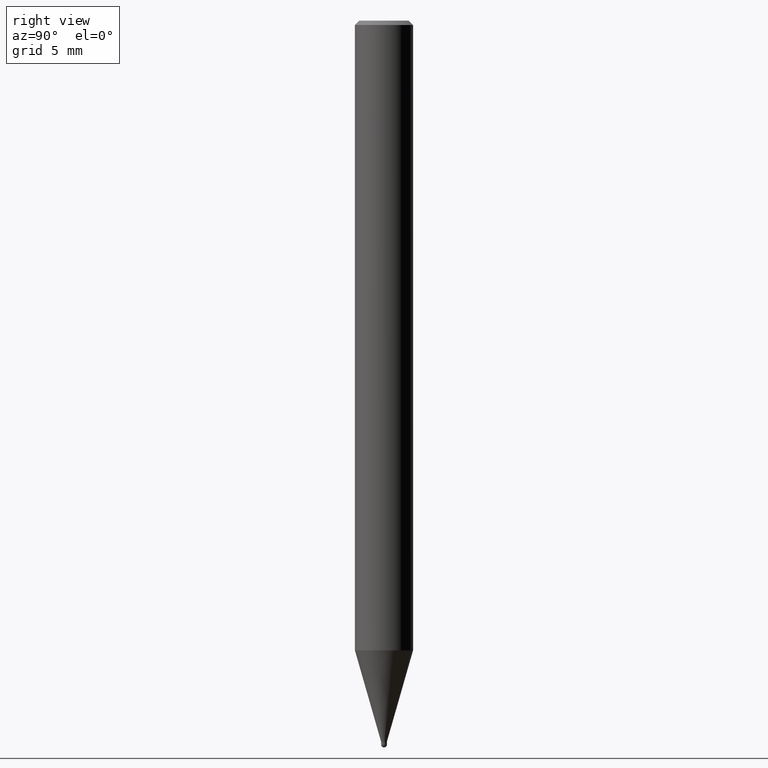
[diagram: clean part render]
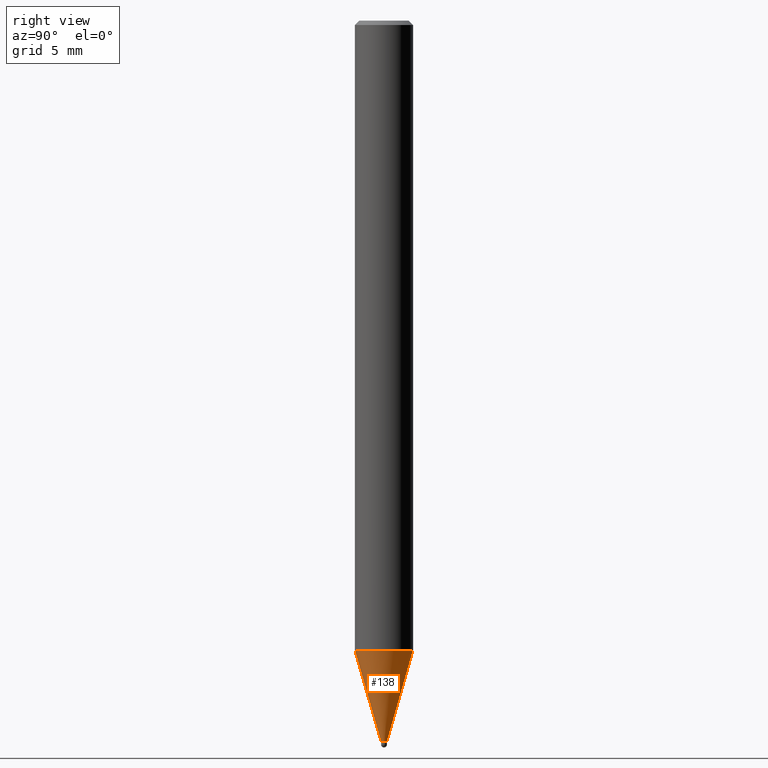
[diagram: same view with one face highlighted and labeled with its STEP entity id]
A machine part, right view. The second image highlights one B-rep face of the part: STEP entity #138.
In plain terms, the highlighted conical surface has half-angle 16.001 deg.
Its self-contained STEP definition (entity closure, byte-faithful):
#94=VERTEX_POINT('',#221);
#110=VERTEX_POINT('',#237);
#118=EDGE_CURVE('',#110,#132,#245,.T.);
#132=VERTEX_POINT('',#260);
#136=EDGE_CURVE('',#94,#132,#264,.T.);
#138=ADVANCED_FACE('',(#266),#267,.T.);
#152=EDGE_CURVE('',#110,#188,#283,.T.);
#176=EDGE_CURVE('',#188,#94,#313,.T.);
#188=VERTEX_POINT('',#327);
#221=CARTESIAN_POINT('',(2.44860040446785E-017,-0.19995,-49.6));
#237=CARTESIAN_POINT('',(0.0,1.99995,-43.323));
#245=CIRCLE('',#387,1.99995);
#260=CARTESIAN_POINT('',(2.44915147732706E-016,-1.99995,-43.323));
#264=LINE('',#408,#409);
#266=FACE_OUTER_BOUND('',#411,.T.);
#267=CONICAL_SURFACE('',#412,1.09995,0.279267285283396);
#283=LINE('',#434,#435);
#313=CIRCLE('',#471,0.19995);
#327=CARTESIAN_POINT('',(0.0,0.19995,-49.6));
#387=AXIS2_PLACEMENT_3D('',#519,#520,#521);
#408=CARTESIAN_POINT('',(1.34700575888692E-016,-1.09995,-46.4615));
#409=VECTOR('',#541,1.0);
#411=EDGE_LOOP('',(#543,#544,#545,#546));
#412=AXIS2_PLACEMENT_3D('',#547,#548,#549);
#434=CARTESIAN_POINT('',(-1.34700575888692E-016,1.09995,-46.4615));
#435=VECTOR('',#569,1.0);
#471=AXIS2_PLACEMENT_3D('',#614,#615,#616);
#519=CARTESIAN_POINT('',(0.0,0.0,-43.323));
#520=DIRECTION('',(0.0,0.0,-1.0));
#521=DIRECTION('',(0.0,1.0,0.0));
#541=DIRECTION('',(3.37564449732947E-017,-0.275651394980357,0.961257670162056));
#543=ORIENTED_EDGE('',*,*,#152,.F.);
#544=ORIENTED_EDGE('',*,*,#118,.T.);
#545=ORIENTED_EDGE('',*,*,#136,.F.);
#546=ORIENTED_EDGE('',*,*,#176,.F.);
#547=CARTESIAN_POINT('',(0.0,0.0,-46.4615));
#548=DIRECTION('',(-0.0,-0.0,1.0));
#549=DIRECTION('',(0.0,1.0,0.0));
#569=DIRECTION('',(3.37564449732947E-017,-0.275651394980357,-0.961257670162056));
#614=CARTESIAN_POINT('',(0.0,0.0,-49.6));
#615=DIRECTION('',(0.0,0.0,-1.0));
#616=DIRECTION('',(0.0,1.0,0.0));